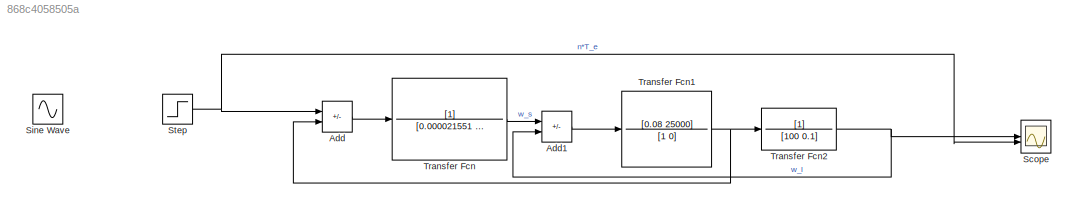
MODEL slx_868c4058505a
KIND model
CONFIG AbsTol = auto
CONFIG EnableMultiTasking = off
CONFIG FixedStep = auto
CONFIG MaxStep = auto
CONFIG MinStep = auto
CONFIG RelTol = 1e-14
CONFIG SampleTimeConstraint = Unconstrained
CONFIG SolverName = VariableStepAuto
CONFIG StartTime = 0.0
CONFIG StopTime = 1000
BLOCK [Sum] Add
  IconShape = rectangular
  Inputs = +-
BLOCK [Sum] Add1
  IconShape = rectangular
  Inputs = +-
BLOCK [Scope] Scope
  Floating = off
  NumInputPorts = 2
  ScopeSpecificationString = Simulink.scopes.TimeScopeBlockCfg('CurrentConfiguration', extmgr.ConfigurationSet(extmgr.Configuration('Core','General UI',true),extmgr.Configuration('Core','Source UI',true),extmgr.Configuration('Sources','WiredSimulink',true),extmgr.Configuration('Visuals','Time Domain',true,'SerializedDisplays',{struct('MinYLimReal','-39.46393','MaxYLimReal','355.17534','YLabelReal','','MinYLimMag','0.00000','M...<+1411ch>
BLOCK [Sin] Sine Wave
  Amplitude = 1000
  Frequency = 0.1
  SampleTime = 0
BLOCK [Step] Step
  After = 100
  SampleTime = 0
  Time = 20
BLOCK [TransferFcn] Transfer Fcn
  Denominator = [0.000021551 0.2]
BLOCK [TransferFcn] Transfer Fcn1
  Denominator = [1 0]
  Numerator = [0.08 25000]
BLOCK [TransferFcn] Transfer Fcn2
  Denominator = [100 0.1]
LINE Add1:1 -> Transfer Fcn1:1
LINE Add:1 -> Transfer Fcn:1
NET Step:1 -> Add:1, Scope:2
NET Transfer Fcn1:1 -> Add:2, Transfer Fcn2:1
NET Transfer Fcn2:1 -> Add1:2, Scope:1
LINE Transfer Fcn:1 -> Add1:1
note: NET lines group one-source signal fan-out (src -> all destinations, sorted); 1:1 wires keep LINE
